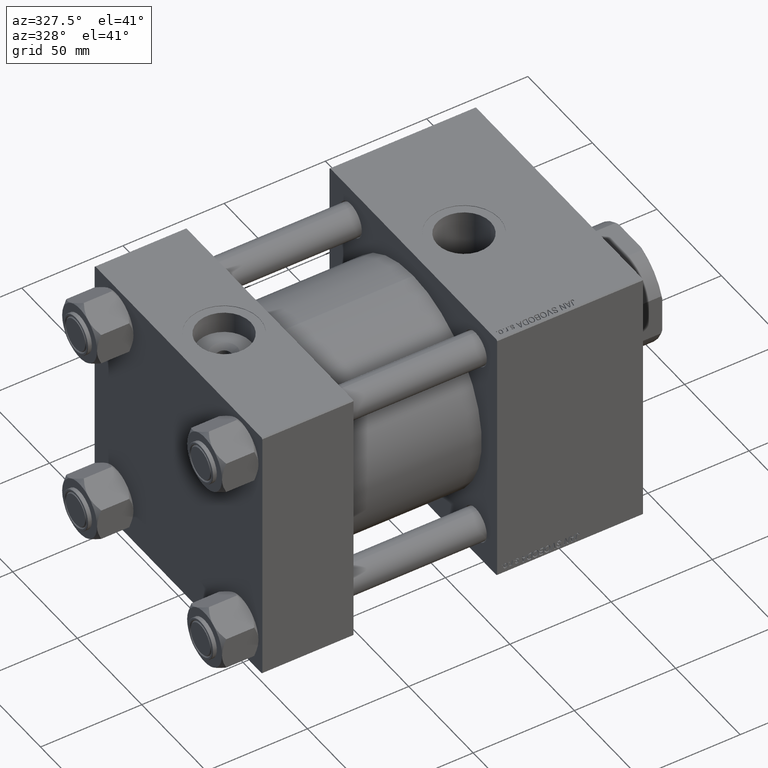
[diagram: clean part render]
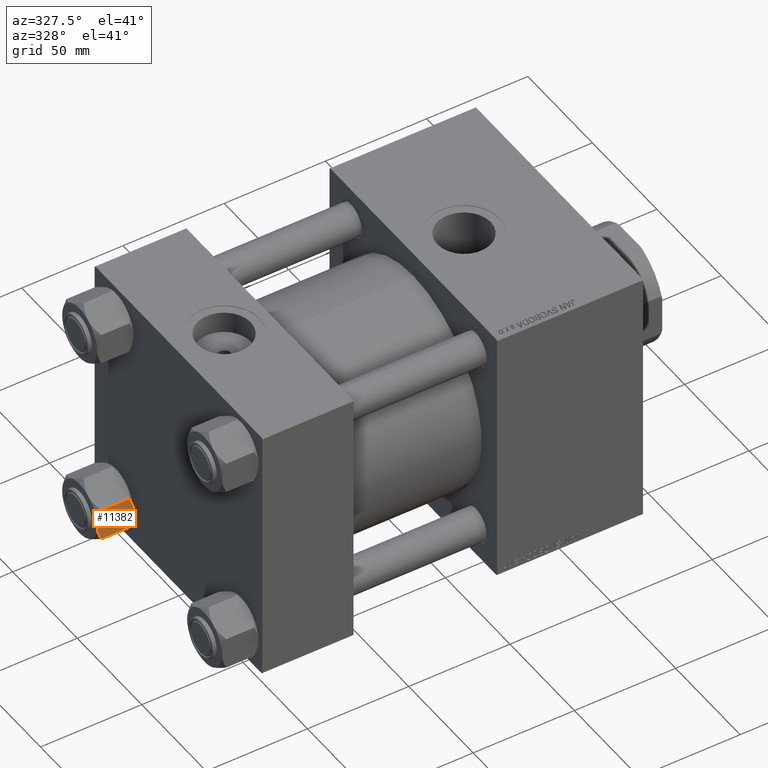
[diagram: same view with one face highlighted and labeled with its STEP entity id]
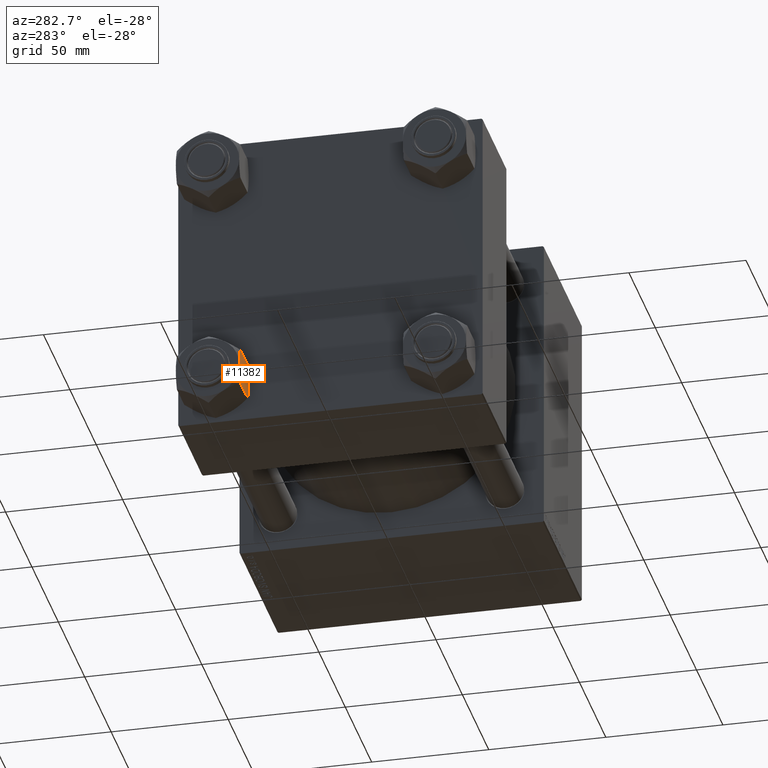
[diagram: same view with one face highlighted and labeled with its STEP entity id]
A machine part, auxiliary view. The second image highlights one B-rep face of the part: STEP entity #11382.
A second angle (auxiliary view) of the same face is appended — the face is thin or edge-on in the first view.
In plain terms, the highlighted planar face has unit normal (-0, 1, -0).
Its self-contained STEP definition (entity closure, byte-faithful):
#231 = CARTESIAN_POINT ( 'NONE',  ( -7.809999999999999609, -13.52731680711293727, -16.00000000000000000 ) ) ;
#318 = ORIENTED_EDGE ( 'NONE', *, *, #38581, .F. ) ;
#1201 = CARTESIAN_POINT ( 'NONE',  ( -6.427364677720470709, -13.52731680711293727, -1.438506937155139109 ) ) ;
#1283 = ORIENTED_EDGE ( 'NONE', *, *, #26790, .F. ) ;
#1392 = VECTOR ( 'NONE', #11661, 1000.000000000000000 ) ;
#1697 = CARTESIAN_POINT ( 'NONE',  ( -5.184073258379385152, -13.52731680711293727, -17.05185620934990709 ) ) ;
#1714 = CARTESIAN_POINT ( 'NONE',  ( -4.553769687922305742, -13.52731680711294082, -0.7327291995145158721 ) ) ;
#3396 = CARTESIAN_POINT ( 'NONE',  ( 3.287826776903156833, -13.52731680711293194, -0.3804584453753362960 ) ) ;
#3679 = VECTOR ( 'NONE', #7028, 1000.000000000000000 ) ;
#3901 = CARTESIAN_POINT ( 'NONE',  ( 0.6693083573771232420, -13.52731680711293372, -0.01249333081107902900 ) ) ;
#4010 = DIRECTION ( 'NONE',  ( -2.221156819432531199E-16, 1.000000000000000000, 0.000000000000000000 ) ) ;
#4324 = CARTESIAN_POINT ( 'NONE',  ( -7.622943475354625242, -13.52731680711293727, -16.00000000000000000 ) ) ;
#4792 = CARTESIAN_POINT ( 'NONE',  ( -7.622943475354625242, -13.52731680711293727, -16.00000000000000000 ) ) ;
#4976 = ORIENTED_EDGE ( 'NONE', *, *, #44898, .T. ) ;
#5051 = CARTESIAN_POINT ( 'NONE',  ( -3.287826776903143067, -13.52731680711293727, -17.61954155462465366 ) ) ;
#5297 = CARTESIAN_POINT ( 'NONE',  ( -7.030203932307560244, -13.52731680711293372, -16.29099812210859710 ) ) ;
#5311 = EDGE_CURVE ( 'NONE', #17985, #5702, #11897, .T. ) ;
#5314 = CARTESIAN_POINT ( 'NONE',  ( -5.189513245496330640, -13.52731680711293905, -0.9501108431732574466 ) ) ;
#5702 = VERTEX_POINT ( 'NONE', #9000 ) ;
#6032 = CARTESIAN_POINT ( 'NONE',  ( -7.809999999999999609, -13.52731680711293727, -1.999999999999998224 ) ) ;
#6487 = B_SPLINE_CURVE_WITH_KNOTS ( 'NONE', 3,
 ( #13018, #45135, #40025, #29475, #28963, #8914, #5051, #40277, #1697, #20716, #5297, #4792 ),
 .UNSPECIFIED., .F., .F.,
 ( 4, 2, 2, 2, 2, 4 ),
 ( 0.02774433486126546416, 0.02873404020403549919, 0.02972374554680553421, 0.03170315623234560426, 0.03368256691788567431, 0.03566197760342574435 ),
 .UNSPECIFIED. ) ;
#6600 = CARTESIAN_POINT ( 'NONE',  ( 6.427364677720458275, -13.52731680711293549, -16.56149306284486045 ) ) ;
#7028 = DIRECTION ( 'NONE',  ( -1.000000000000000000, -2.221156819432531199E-16, 0.000000000000000000 ) ) ;
#7470 = LINE ( 'NONE', #50442, #42059 ) ;
#8404 = CARTESIAN_POINT ( 'NONE',  ( -7.622943475354647447, -13.52731680711293727, -2.000000000000000000 ) ) ;
#8761 = EDGE_LOOP ( 'NONE', ( #48679, #4976, #43550, #34123, #11518, #26848, #318, #1283, #12074, #38028 ) ) ;
#8914 = CARTESIAN_POINT ( 'NONE',  ( -2.644243758052979398, -13.52731680711293905, -17.75917188019759507 ) ) ;
#9000 = CARTESIAN_POINT ( 'NONE',  ( 7.622943475354630571, -13.52731680711293372, -16.00000000000000000 ) ) ;
#9423 = CARTESIAN_POINT ( 'NONE',  ( -7.030888348548060662, -13.52731680711294082, -1.709337883550297699 ) ) ;
#9696 = DIRECTION ( 'NONE',  ( 1.000000000000000000, 2.221156819432531199E-16, -0.000000000000000000 ) ) ;
#9986 = CARTESIAN_POINT ( 'NONE',  ( -7.809999999999999609, -13.52731680711293727, -18.00000000000000000 ) ) ;
#11382 = ADVANCED_FACE ( 'NONE', ( #23538 ), #34888, .F. ) ;
#11518 = ORIENTED_EDGE ( 'NONE', *, *, #40588, .F. ) ;
#11596 = VERTEX_POINT ( 'NONE', #49513 ) ;
#11627 = CARTESIAN_POINT ( 'NONE',  ( 5.184073258379408244, -13.52731680711293372, -0.9481437906500832513 ) ) ;
#11661 = DIRECTION ( 'NONE',  ( -1.000000000000000000, -2.221156819432531199E-16, 0.000000000000000000 ) ) ;
#11687 = CARTESIAN_POINT ( 'NONE',  ( 7.622943475354652776, -13.52731680711293372, -2.000000000000000000 ) ) ;
#11897 = LINE ( 'NONE', #31442, #3679 ) ;
#12074 = ORIENTED_EDGE ( 'NONE', *, *, #30806, .F. ) ;
#12175 = CARTESIAN_POINT ( 'NONE',  ( 7.810000000000002274, -13.52731680711293372, -16.00000000000000000 ) ) ;
#12525 = CARTESIAN_POINT ( 'NONE',  ( -1.335584685993413956, -13.52731680711294082, 1.666960840196463265E-15 ) ) ;
#13018 = CARTESIAN_POINT ( 'NONE',  ( 3.004629197474316879E-15, -13.52731680711292661, -18.00000000000000000 ) ) ;
#14070 = CARTESIAN_POINT ( 'NONE',  ( 4.553769687922296860, -13.52731680711293372, -17.26727080048547691 ) ) ;
#14319 = CARTESIAN_POINT ( 'NONE',  ( 7.622943475354630571, -13.52731680711293372, -16.00000000000000000 ) ) ;
#14803 = VECTOR ( 'NONE', #49093, 1000.000000000000000 ) ;
#15215 = CARTESIAN_POINT ( 'NONE',  ( 6.422751913021828685, -13.52731680711293549, -1.436509110925896948 ) ) ;
#17244 = CARTESIAN_POINT ( 'NONE',  ( -7.622943475354647447, -13.52731680711293727, -2.000000000000000000 ) ) ;
#17985 = VERTEX_POINT ( 'NONE', #44601 ) ;
#18161 = VERTEX_POINT ( 'NONE', #32473 ) ;
#18234 = DIRECTION ( 'NONE',  ( -1.000000000000000000, -2.221156819432531199E-16, 0.000000000000000000 ) ) ;
#20716 = CARTESIAN_POINT ( 'NONE',  ( -6.422751913021801151, -13.52731680711293905, -16.56349088907410305 ) ) ;
#21749 = CARTESIAN_POINT ( 'NONE',  ( 1.335584685993413956, -13.52731680711293194, -17.99999999999998934 ) ) ;
#22975 = EDGE_CURVE ( 'NONE', #49952, #33226, #25624, .T. ) ;
#23420 = CARTESIAN_POINT ( 'NONE',  ( 1.663410456966175843, -13.52731680711293372, -0.09804949135698878826 ) ) ;
#23538 = FACE_OUTER_BOUND ( 'NONE', #8761, .T. ) ;
#23786 = CARTESIAN_POINT ( 'NONE',  ( 7.810000000000002274, -13.52731680711293372, -18.00000000000000000 ) ) ;
#24064 = CARTESIAN_POINT ( 'NONE',  ( -2.638177715023105385, -13.52731680711294082, -0.2001540676698838062 ) ) ;
#24836 = CARTESIAN_POINT ( 'NONE',  ( 3.004629197474319246E-15, -13.52731680711293727, 0.000000000000000000 ) ) ;
#25624 = LINE ( 'NONE', #37470, #36600 ) ;
#26790 = EDGE_CURVE ( 'NONE', #42289, #28417, #47135, .T. ) ;
#26848 = ORIENTED_EDGE ( 'NONE', *, *, #46832, .F. ) ;
#27306 = CARTESIAN_POINT ( 'NONE',  ( 7.622943475354652776, -13.52731680711293372, -2.000000000000000000 ) ) ;
#28417 = VERTEX_POINT ( 'NONE', #231 ) ;
#28963 = CARTESIAN_POINT ( 'NONE',  ( -1.663410456966165407, -13.52731680711293727, -17.90195050864300086 ) ) ;
#29475 = CARTESIAN_POINT ( 'NONE',  ( -1.333889873825127026, -13.52731680711293727, -17.93843358996560156 ) ) ;
#29787 = CARTESIAN_POINT ( 'NONE',  ( 7.810000000000002274, -13.52731680711293372, -1.999999999999998224 ) ) ;
#30806 = EDGE_CURVE ( 'NONE', #18161, #42289, #6487, .T. ) ;
#31166 = CARTESIAN_POINT ( 'NONE',  ( 1.333889873825135686, -13.52731680711293549, -0.06156641003439144999 ) ) ;
#31442 = CARTESIAN_POINT ( 'NONE',  ( 7.810000000000002274, -13.52731680711293372, -16.00000000000000000 ) ) ;
#32473 = CARTESIAN_POINT ( 'NONE',  ( 3.004629197474316879E-15, -13.52731680711292661, -18.00000000000000000 ) ) ;
#33226 = VERTEX_POINT ( 'NONE', #39863 ) ;
#33377 = LINE ( 'NONE', #9986, #14803 ) ;
#33621 = DIRECTION ( 'NONE',  ( 1.000000000000000000, 2.221156819432531199E-16, -0.000000000000000000 ) ) ;
#34123 = ORIENTED_EDGE ( 'NONE', *, *, #50249, .F. ) ;
#34480 = DIRECTION ( 'NONE',  ( -0.000000000000000000, -0.000000000000000000, 1.000000000000000000 ) ) ;
#34888 = PLANE ( 'NONE',  #48240 ) ;
#36600 = VECTOR ( 'NONE', #9696, 1000.000000000000000 ) ;
#36975 = CARTESIAN_POINT ( 'NONE',  ( 3.004629197474316879E-15, -13.52731680711292661, -18.00000000000000000 ) ) ;
#37230 = B_SPLINE_CURVE_WITH_KNOTS ( 'NONE', 3,
 ( #43245, #46601, #3901, #31166, #23420, #38121, #3396, #50483, #11627, #15215, #38877, #27306 ),
 .UNSPECIFIED., .F., .F.,
 ( 4, 2, 2, 2, 2, 4 ),
 ( 0.02774433486126546416, 0.02873404020403550266, 0.02972374554680554115, 0.03170315623234561814, 0.03368256691788569512, 0.03566197760342577211 ),
 .UNSPECIFIED. ) ;
#37470 = CARTESIAN_POINT ( 'NONE',  ( 7.810000000000002274, -13.52731680711293372, -1.999999999999998224 ) ) ;
#37780 = VECTOR ( 'NONE', #33621, 1000.000000000000000 ) ;
#37968 = CARTESIAN_POINT ( 'NONE',  ( 2.638177715023103609, -13.52731680711293372, -17.79984593233010415 ) ) ;
#38028 = ORIENTED_EDGE ( 'NONE', *, *, #40786, .F. ) ;
#38121 = CARTESIAN_POINT ( 'NONE',  ( 2.644243758052992277, -13.52731680711293372, -0.2408281198023969893 ) ) ;
#38581 = EDGE_CURVE ( 'NONE', #28417, #41899, #33377, .T. ) ;
#38877 = CARTESIAN_POINT ( 'NONE',  ( 7.030203932307590442, -13.52731680711293727, -1.709001877891394017 ) ) ;
#39205 = VERTEX_POINT ( 'NONE', #17244 ) ;
#39753 = B_SPLINE_CURVE_WITH_KNOTS ( 'NONE', 3,
 ( #8404, #9423, #1201, #5314, #1714, #24064, #12525, #24836 ),
 .UNSPECIFIED., .F., .F.,
 ( 4, 2, 2, 4 ),
 ( 0.01980594295952729095, 0.02179054093496183425, 0.02377513891039637756, 0.02774433486126546416 ),
 .UNSPECIFIED. ) ;
#39863 = CARTESIAN_POINT ( 'NONE',  ( 7.810000000000002274, -13.52731680711293372, -1.999999999999998224 ) ) ;
#40025 = CARTESIAN_POINT ( 'NONE',  ( -0.6693083573771156924, -13.52731680711293549, -17.98750666918891028 ) ) ;
#40277 = CARTESIAN_POINT ( 'NONE',  ( -4.557734399832399141, -13.52731680711293905, -17.26585298258847700 ) ) ;
#40588 = EDGE_CURVE ( 'NONE', #39205, #11596, #39753, .T. ) ;
#40786 = EDGE_CURVE ( 'NONE', #5702, #18161, #50252, .T. ) ;
#41069 = CARTESIAN_POINT ( 'NONE',  ( 5.189513245496319094, -13.52731680711293372, -17.04988915682674033 ) ) ;
#41899 = VERTEX_POINT ( 'NONE', #6032 ) ;
#42059 = VECTOR ( 'NONE', #34480, 1000.000000000000000 ) ;
#42289 = VERTEX_POINT ( 'NONE', #4324 ) ;
#42347 = LINE ( 'NONE', #29787, #37780 ) ;
#43245 = CARTESIAN_POINT ( 'NONE',  ( 3.004629197474319246E-15, -13.52731680711293727, 0.000000000000000000 ) ) ;
#43550 = ORIENTED_EDGE ( 'NONE', *, *, #22975, .F. ) ;
#44601 = CARTESIAN_POINT ( 'NONE',  ( 7.810000000000002274, -13.52731680711293372, -16.00000000000000000 ) ) ;
#44898 = EDGE_CURVE ( 'NONE', #17985, #33226, #7470, .T. ) ;
#45135 = CARTESIAN_POINT ( 'NONE',  ( -0.3330234424833806162, -13.52731680711293727, -17.99999999999999645 ) ) ;
#46601 = CARTESIAN_POINT ( 'NONE',  ( 0.3330234424833860007, -13.52731680711293727, 1.736982230502816853E-15 ) ) ;
#46832 = EDGE_CURVE ( 'NONE', #41899, #39205, #42347, .T. ) ;
#47135 = LINE ( 'NONE', #12175, #1392 ) ;
#48240 = AXIS2_PLACEMENT_3D ( 'NONE', #23786, #4010, #18234 ) ;
#48679 = ORIENTED_EDGE ( 'NONE', *, *, #5311, .F. ) ;
#49093 = DIRECTION ( 'NONE',  ( -0.000000000000000000, -0.000000000000000000, 1.000000000000000000 ) ) ;
#49315 = CARTESIAN_POINT ( 'NONE',  ( 7.030888348548049116, -13.52731680711293372, -16.29066211644970608 ) ) ;
#49513 = CARTESIAN_POINT ( 'NONE',  ( 3.004629197474319246E-15, -13.52731680711293727, 0.000000000000000000 ) ) ;
#49952 = VERTEX_POINT ( 'NONE', #11687 ) ;
#50249 = EDGE_CURVE ( 'NONE', #11596, #49952, #37230, .T. ) ;
#50252 = B_SPLINE_CURVE_WITH_KNOTS ( 'NONE', 3,
 ( #14319, #49315, #6600, #41069, #14070, #37968, #21749, #36975 ),
 .UNSPECIFIED., .F., .F.,
 ( 4, 2, 2, 4 ),
 ( 0.01980594295952731870, 0.02179054093496185507, 0.02377513891039638796, 0.02774433486126546416 ),
 .UNSPECIFIED. ) ;
#50442 = CARTESIAN_POINT ( 'NONE',  ( 7.810000000000002274, -13.52731680711293372, -18.00000000000000000 ) ) ;
#50483 = CARTESIAN_POINT ( 'NONE',  ( 4.557734399832416905, -13.52731680711293016, -0.7341470174115138914 ) ) ;